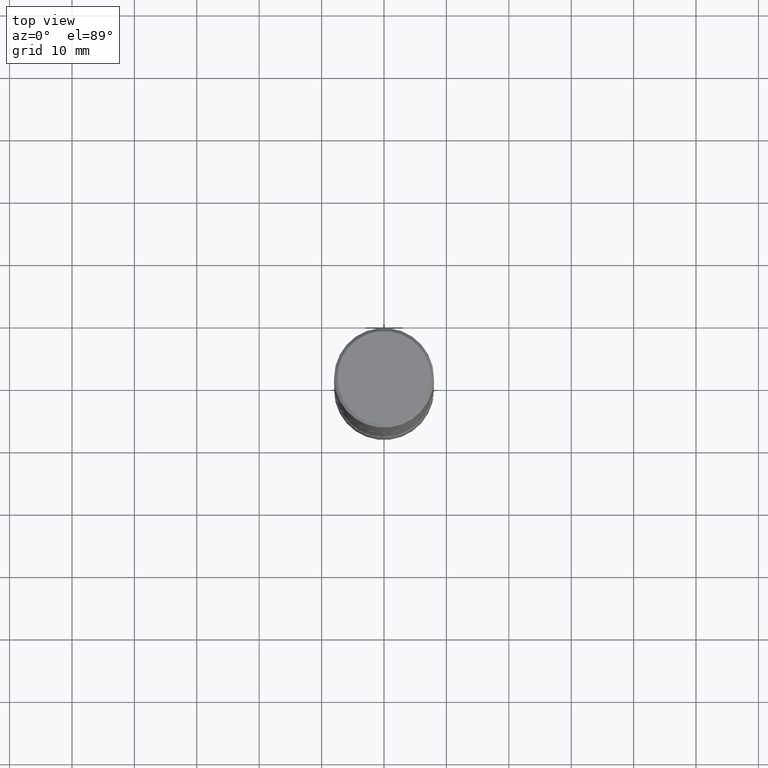
[diagram: clean part render]
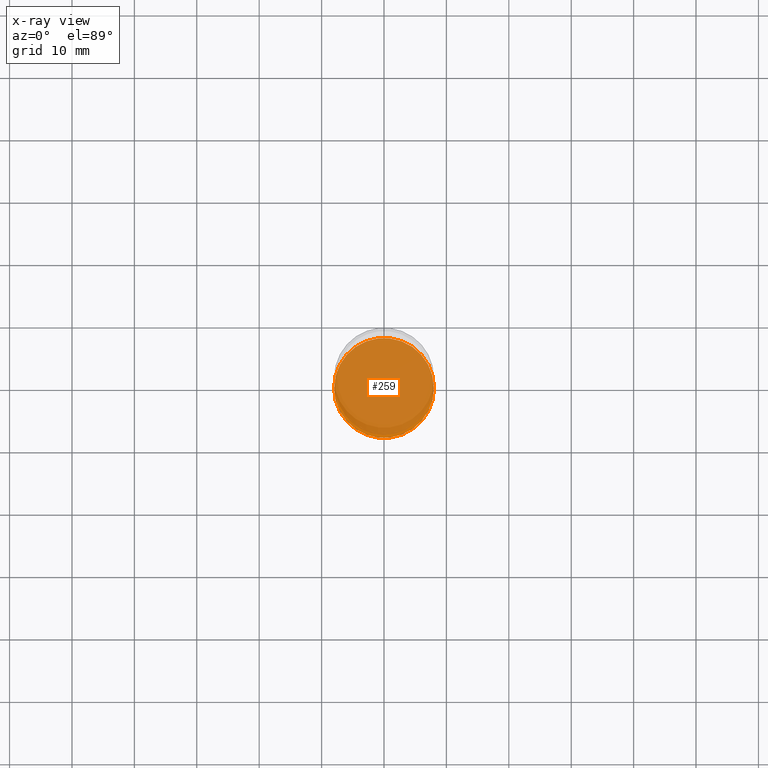
[diagram: x-ray — body ghosted, one internal face saturated and labeled with its STEP entity id]
A machine part, top view, then the same camera in x-ray: the body is ghosted and one INTERNAL B-rep face — a face not visible from any outside direction — is saturated and labeled: STEP entity #259.
In plain terms, the highlighted planar face has unit normal (0, -0, -1).
Its self-contained STEP definition (entity closure, byte-faithful):
#75 = CIRCLE ( 'NONE', #397, 0.3149500000000002298 ) ;
#85 = DIRECTION ( 'NONE',  ( -2.445468806185136597E-29, 3.491481338843145583E-15, 1.000000000000000000 ) ) ;
#95 = VERTEX_POINT ( 'NONE', #316 ) ;
#134 = FACE_OUTER_BOUND ( 'NONE', #422, .T. ) ;
#153 = DIRECTION ( 'NONE',  ( 1.000000000000000000, -6.982962677686264344E-15, 0.000000000000000000 ) ) ;
#190 = CARTESIAN_POINT ( 'NONE',  ( 9.146542428893648262E-29, -1.305883850354113437E-14, -3.740200000000000191 ) ) ;
#217 = DIRECTION ( 'NONE',  ( 2.438088387897960049E-29, -3.491481338843145188E-15, -1.000000000000000000 ) ) ;
#249 = AXIS2_PLACEMENT_3D ( 'NONE', #190, #85, #502 ) ;
#251 = EDGE_CURVE ( 'NONE', #95, #522, #328, .T. ) ;
#259 = ADVANCED_FACE ( 'NONE', ( #134 ), #340, .F. ) ;
#296 = CARTESIAN_POINT ( 'NONE',  ( 9.146542428893648262E-29, -1.305883850354113437E-14, -3.740200000000000191 ) ) ;
#302 = EDGE_CURVE ( 'NONE', #522, #95, #75, .T. ) ;
#314 = AXIS2_PLACEMENT_3D ( 'NONE', #380, #217, #517 ) ;
#316 = CARTESIAN_POINT ( 'NONE',  ( -0.3149500000000002298, -1.209240708680442637E-14, -3.740200000000000191 ) ) ;
#328 = CIRCLE ( 'NONE', #249, 0.3149500000000002298 ) ;
#340 = PLANE ( 'NONE',  #314 ) ;
#355 = CARTESIAN_POINT ( 'NONE',  ( 0.3149500000000002298, -1.525812259887842581E-14, -3.740200000000000191 ) ) ;
#380 = CARTESIAN_POINT ( 'NONE',  ( 9.146542428893648262E-29, -1.305883850354113437E-14, -3.740200000000000191 ) ) ;
#386 = ORIENTED_EDGE ( 'NONE', *, *, #302, .T. ) ;
#397 = AXIS2_PLACEMENT_3D ( 'NONE', #296, #471, #153 ) ;
#422 = EDGE_LOOP ( 'NONE', ( #386, #530 ) ) ;
#471 = DIRECTION ( 'NONE',  ( -2.445468806185136597E-29, 3.491481338843145583E-15, 1.000000000000000000 ) ) ;
#502 = DIRECTION ( 'NONE',  ( 1.000000000000000000, -6.982962677686264344E-15, 0.000000000000000000 ) ) ;
#517 = DIRECTION ( 'NONE',  ( -1.000000000000000000, 6.982962677686265922E-15, -4.876176775795935793E-29 ) ) ;
#522 = VERTEX_POINT ( 'NONE', #355 ) ;
#530 = ORIENTED_EDGE ( 'NONE', *, *, #251, .T. ) ;